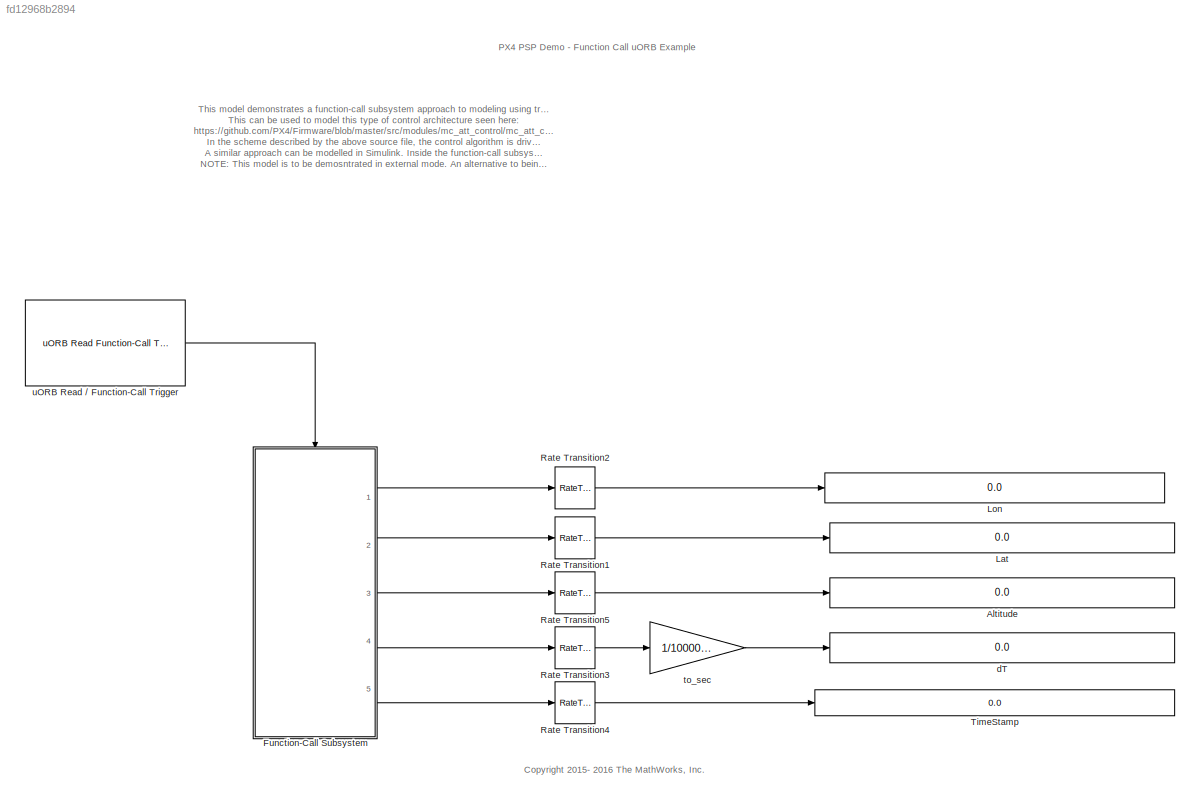
MODEL slx_fd12968b2894
KIND model
CONFIG AbsTol = auto
CONFIG EnableMultiTasking = on
CONFIG FixedStep = auto
CONFIG MaxStep = auto
CONFIG MinStep = auto
CONFIG RelTol = 1e-3
CONFIG SampleTimeConstraint = Unconstrained
CONFIG Solver = FixedStepDiscrete
CONFIG SolverName = FixedStepDiscrete
CONFIG StartTime = 0.0
CONFIG StopTime = inf
BLOCK [Display] Altitude
  Decimation = 1
  Ports = [1]
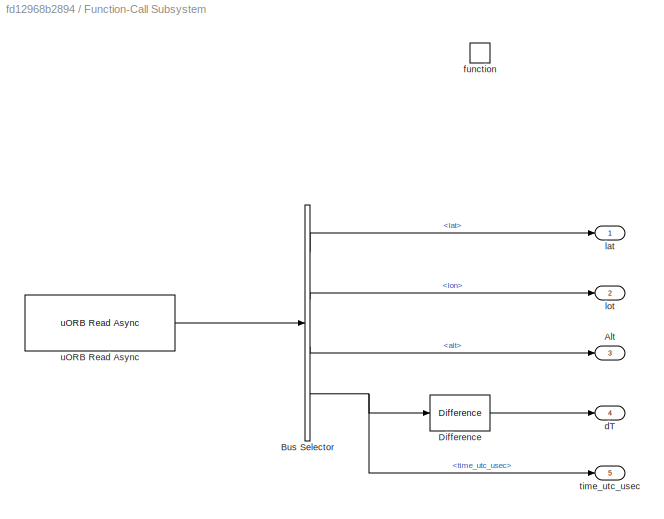
BLOCK [SubSystem] Function-Call Subsystem
  Ports = [0, 5, 0, 1]
  RequestExecContextInheritance = off
  TreatAsAtomicUnit = on
  Variant = off
BLOCK [Outport] Function-Call Subsystem/Alt
  IconDisplay = Port number
  Port = 3
BLOCK [BusSelector] Function-Call Subsystem/Bus Selector
  OutputAsBus = off
  OutputSignals = lat,lon,alt,time_utc_usec
  Ports = [1, 4]
BLOCK [Reference] Function-Call Subsystem/Difference  REF=simulink/Discrete/Difference
  Ports = [1, 1]
  SourceBlock = simulink/Discrete/Difference
  SourceProductBaseCode = SL
  SourceProductName = Simulink
  SourceType = Difference
BLOCK [Outport] Function-Call Subsystem/dT
  IconDisplay = Port number
  Port = 4
BLOCK [TriggerPort] Function-Call Subsystem/function
  Ports = []
  StatesWhenEnabling = held
  TriggerType = function-call
  VariantControl = Variant
BLOCK [Outport] Function-Call Subsystem/lat
  IconDisplay = Port number
BLOCK [Outport] Function-Call Subsystem/lot
  IconDisplay = Port number
  Port = 2
BLOCK [Outport] Function-Call Subsystem/time_utc_usec
  IconDisplay = Port number
  Port = 5
BLOCK [Reference] Function-Call Subsystem/uORB Read Async  REF=pixhawk_slib_uORB_RW/uORB Read Async
  Ports = [0, 1]
  SourceBlock = pixhawk_slib_uORB_RW/uORB Read Async
  SourceProductName = Pixhawk Target Blocks
BLOCK [Display] Lat
  Decimation = 1
  Ports = [1]
BLOCK [Display] Lon
  Decimation = 1
  Ports = [1]
BLOCK [RateTransition] Rate Transition1
  Deterministic = off
  OutPortSampleTime = 0.1
BLOCK [RateTransition] Rate Transition2
  Deterministic = off
  OutPortSampleTime = 0.1
BLOCK [RateTransition] Rate Transition3
  Deterministic = off
  OutPortSampleTime = 0.1
BLOCK [RateTransition] Rate Transition4
  Deterministic = off
  OutPortSampleTime = 0.1
BLOCK [RateTransition] Rate Transition5
  Deterministic = off
  OutPortSampleTime = 0.1
BLOCK [Display] TimeStamp
  Decimation = 1
  Format = long_e
  Ports = [1]
BLOCK [Display] dT
  Decimation = 1
  Ports = [1]
BLOCK [Gain] to_sec
  Gain = 1/1000000
  OutDataTypeStr = double
  ParamDataTypeStr = Inherit: Inherit via internal rule
  SaturateOnIntegerOverflow = off
BLOCK [Reference] uORB Read // Function-Call Trigger  REF=pixhawk_slib_uORB_RW/uORB Read Function-Call Trigger
  Ports = [0, 1]
  SourceBlock = pixhawk_slib_uORB_RW/uORB Read Function-Call Trigger
  SourceProductName = Pixhawk Target Blocks
ANNOTATION (root): This model demonstrates a function-call subsystem approach to modeling using triggered subsystems This can be used to model this type of control architecture seen here: https://github.com/PX4/Firmware/blob/master/src/modules/mc_att_control/mc_att_control_main.cpp In the scheme described by the above source file, the control algorithm is driven by sensor updates. A variable is used to keep track of...<+925ch>
ANNOTATION (root): PX4 PSP Demo - Function Call uORB Example
ANNOTATION (root): <copyright redacted>
LINE Function-Call Subsystem/Bus Selector:1 -> Function-Call Subsystem/lat:1
LINE Function-Call Subsystem/Bus Selector:2 -> Function-Call Subsystem/lot:1
LINE Function-Call Subsystem/Bus Selector:3 -> Function-Call Subsystem/Alt:1
NET Function-Call Subsystem/Bus Selector:4 -> Function-Call Subsystem/Difference:1, Function-Call Subsystem/time_utc_usec:1
LINE Function-Call Subsystem/Difference:1 -> Function-Call Subsystem/dT:1
LINE Function-Call Subsystem/uORB Read Async:1 -> Function-Call Subsystem/Bus Selector:1
LINE Function-Call Subsystem:1 -> Rate Transition2:1
LINE Function-Call Subsystem:2 -> Rate Transition1:1
LINE Function-Call Subsystem:3 -> Rate Transition5:1
LINE Function-Call Subsystem:4 -> Rate Transition3:1
LINE Function-Call Subsystem:5 -> Rate Transition4:1
LINE Rate Transition1:1 -> Lat:1
LINE Rate Transition2:1 -> Lon:1
LINE Rate Transition3:1 -> to_sec:1
LINE Rate Transition4:1 -> TimeStamp:1
LINE Rate Transition5:1 -> Altitude:1
LINE to_sec:1 -> dT:1
LINE uORB Read // Function-Call Trigger:1 -> Function-Call Subsystem:trigger
note: NET lines group one-source signal fan-out (src -> all destinations, sorted); 1:1 wires keep LINE
